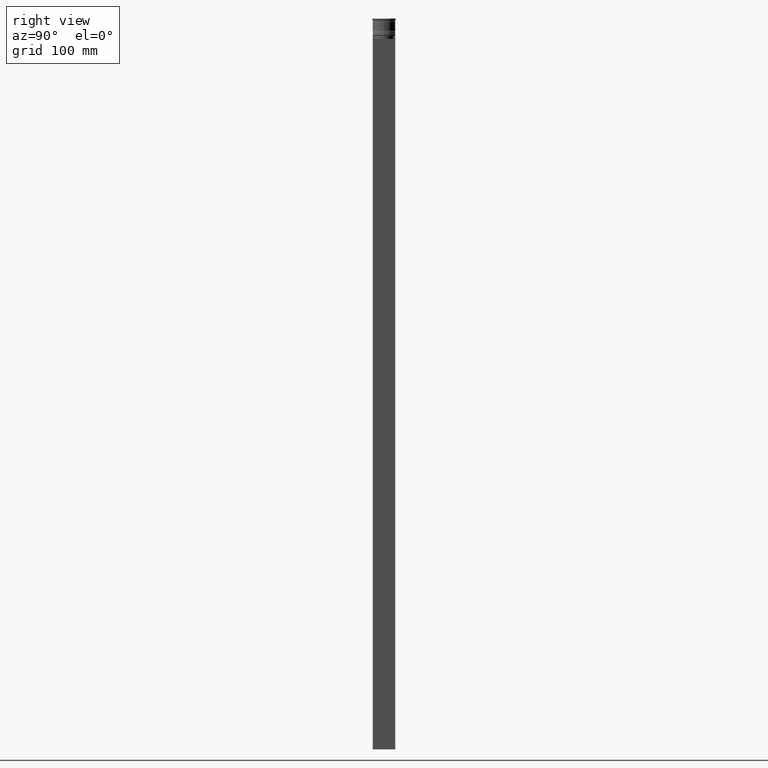
[diagram: clean part render]
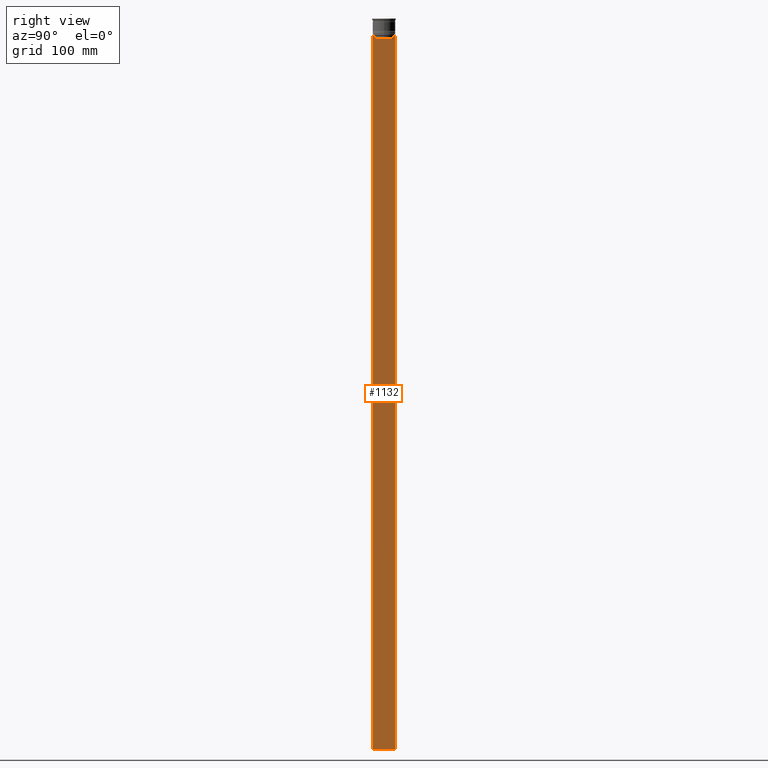
[diagram: same view with one face highlighted and labeled with its STEP entity id]
A machine part, right view. The second image highlights one B-rep face of the part: STEP entity #1132.
In plain terms, the highlighted planar face has unit normal (-1, 0, 0).
Its self-contained STEP definition (entity closure, byte-faithful):
#5 = CARTESIAN_POINT ( 'NONE',  ( 0.5000000000000000000, 8.051152811434374001, -14.33334332653219079 ) ) ;
#6 = EDGE_CURVE ( 'NONE', #1875, #645, #1777, .T. ) ;
#30 = DIRECTION ( 'NONE',  ( 0.000000000000000000, 0.000000000000000000, -1.000000000000000000 ) ) ;
#49 = EDGE_CURVE ( 'NONE', #1387, #509, #2404, .T. ) ;
#56 = CARTESIAN_POINT ( 'NONE',  ( 0.5000000000000000000, -8.385105843100605583, -14.00000000000000178 ) ) ;
#58 = ORIENTED_EDGE ( 'NONE', *, *, #1828, .T. ) ;
#59 = VERTEX_POINT ( 'NONE', #550 ) ;
#131 = LINE ( 'NONE', #888, #1768 ) ;
#135 = DIRECTION ( 'NONE',  ( 0.000000000000000000, -1.000000000000000000, 0.000000000000000000 ) ) ;
#171 = B_SPLINE_CURVE_WITH_KNOTS ( 'NONE', 3,
 ( #1670, #620, #5, #2521 ),
 .UNSPECIFIED., .F., .F.,
 ( 4, 4 ),
 ( 0.01426761478740281447, 0.01497538974438914448 ),
 .UNSPECIFIED. ) ;
#190 = DIRECTION ( 'NONE',  ( 0.000000000000000000, -1.000000000000000000, 0.000000000000000000 ) ) ;
#219 = CARTESIAN_POINT ( 'NONE',  ( 0.5000000000000000000, -9.500000000000001776, -614.0000000000000000 ) ) ;
#295 = VECTOR ( 'NONE', #30, 1000.000000000000000 ) ;
#305 = LINE ( 'NONE', #1884, #295 ) ;
#331 = CARTESIAN_POINT ( 'NONE',  ( 0.5000000000000000000, -9.386692708297204035, -14.00000000000000178 ) ) ;
#395 = CARTESIAN_POINT ( 'NONE',  ( 0.5000000000000000000, 7.884161337770803080, 0.000000000000000000 ) ) ;
#483 = CARTESIAN_POINT ( 'NONE',  ( 0.5000000000000000000, 9.386692708297204035, -14.00000000000000178 ) ) ;
#509 = VERTEX_POINT ( 'NONE', #813 ) ;
#531 = EDGE_CURVE ( 'NONE', #1382, #1957, #1470, .T. ) ;
#538 = ORIENTED_EDGE ( 'NONE', *, *, #1080, .T. ) ;
#550 = CARTESIAN_POINT ( 'NONE',  ( 0.5000000000000000000, 8.385105843100605583, -14.00000000000000178 ) ) ;
#620 = CARTESIAN_POINT ( 'NONE',  ( 0.5000000000000000000, 8.218133718559618828, -14.16667606394327983 ) ) ;
#621 = CARTESIAN_POINT ( 'NONE',  ( 0.5000000000000000000, -8.051152795888546265, -14.33334334204685057 ) ) ;
#636 = DIRECTION ( 'NONE',  ( 0.000000000000000000, -1.000000000000000000, 0.000000000000000000 ) ) ;
#641 = AXIS2_PLACEMENT_3D ( 'NONE', #1584, #1099, #2577 ) ;
#645 = VERTEX_POINT ( 'NONE', #2157 ) ;
#679 = EDGE_CURVE ( 'NONE', #2576, #1356, #305, .T. ) ;
#749 = ORIENTED_EDGE ( 'NONE', *, *, #1778, .T. ) ;
#767 = ORIENTED_EDGE ( 'NONE', *, *, #1805, .T. ) ;
#777 = VECTOR ( 'NONE', #636, 1000.000000000000000 ) ;
#791 = DIRECTION ( 'NONE',  ( 0.000000000000000000, -1.000000000000000000, 0.000000000000000000 ) ) ;
#813 = CARTESIAN_POINT ( 'NONE',  ( 0.5000000000000000000, -7.884161337770803080, -17.00000000000000000 ) ) ;
#826 = LINE ( 'NONE', #2098, #1562 ) ;
#850 = CARTESIAN_POINT ( 'NONE',  ( 0.5000000000000000000, -9.500000000000001776, -14.00000000000000178 ) ) ;
#857 = VECTOR ( 'NONE', #791, 1000.000000000000000 ) ;
#888 = CARTESIAN_POINT ( 'NONE',  ( 0.5000000000000000000, -9.500000000000001776, -14.00000000000000178 ) ) ;
#897 = EDGE_LOOP ( 'NONE', ( #538, #767, #1508, #1601, #1202, #1616, #1016, #749, #1981, #58, #957, #2487 ) ) ;
#938 = VECTOR ( 'NONE', #135, 1000.000000000000000 ) ;
#956 = DIRECTION ( 'NONE',  ( 0.000000000000000000, -1.000000000000000000, 0.000000000000000000 ) ) ;
#957 = ORIENTED_EDGE ( 'NONE', *, *, #6, .F. ) ;
#995 = VECTOR ( 'NONE', #1698, 1000.000000000000000 ) ;
#1016 = ORIENTED_EDGE ( 'NONE', *, *, #2266, .T. ) ;
#1065 = CARTESIAN_POINT ( 'NONE',  ( 0.5000000000000000000, -7.884161337770803080, -14.50000000000000000 ) ) ;
#1080 = EDGE_CURVE ( 'NONE', #1965, #59, #131, .T. ) ;
#1099 = DIRECTION ( 'NONE',  ( -1.000000000000000000, 0.000000000000000000, 0.000000000000000000 ) ) ;
#1132 = ADVANCED_FACE ( 'NONE', ( #1967 ), #1504, .F. ) ;
#1202 = ORIENTED_EDGE ( 'NONE', *, *, #1826, .T. ) ;
#1232 = EDGE_CURVE ( 'NONE', #1875, #1965, #2644, .T. ) ;
#1254 = LINE ( 'NONE', #219, #995 ) ;
#1269 = CARTESIAN_POINT ( 'NONE',  ( 0.5000000000000000000, 9.499999999999998224, -14.00000000000000178 ) ) ;
#1282 = DIRECTION ( 'NONE',  ( -0.000000000000000000, -0.000000000000000000, 1.000000000000000000 ) ) ;
#1329 = VECTOR ( 'NONE', #2038, 1000.000000000000000 ) ;
#1356 = VERTEX_POINT ( 'NONE', #2087 ) ;
#1382 = VERTEX_POINT ( 'NONE', #1065 ) ;
#1387 = VERTEX_POINT ( 'NONE', #2481 ) ;
#1470 = B_SPLINE_CURVE_WITH_KNOTS ( 'NONE', 3,
 ( #2230, #621, #1872, #2272 ),
 .UNSPECIFIED., .F., .F.,
 ( 4, 4 ),
 ( 0.03673372442973153046, 0.03744389749832059688 ),
 .UNSPECIFIED. ) ;
#1504 = PLANE ( 'NONE',  #641 ) ;
#1508 = ORIENTED_EDGE ( 'NONE', *, *, #2633, .T. ) ;
#1550 = CARTESIAN_POINT ( 'NONE',  ( 0.5000000000000000000, 7.899999999999994138, -17.00000000000000000 ) ) ;
#1562 = VECTOR ( 'NONE', #1282, 1000.000000000000000 ) ;
#1584 = CARTESIAN_POINT ( 'NONE',  ( 0.5000000000000000000, -9.500000000000001776, 5.026297590440445440 ) ) ;
#1594 = VECTOR ( 'NONE', #2381, 1000.000000000000000 ) ;
#1601 = ORIENTED_EDGE ( 'NONE', *, *, #49, .T. ) ;
#1616 = ORIENTED_EDGE ( 'NONE', *, *, #531, .T. ) ;
#1670 = CARTESIAN_POINT ( 'NONE',  ( 0.5000000000000000000, 8.385105843100605583, -14.00000000000000178 ) ) ;
#1698 = DIRECTION ( 'NONE',  ( 0.000000000000000000, 1.000000000000000000, 0.000000000000000000 ) ) ;
#1747 = CARTESIAN_POINT ( 'NONE',  ( 0.5000000000000000000, 9.499999999999998224, 5.026297590440445440 ) ) ;
#1768 = VECTOR ( 'NONE', #956, 1000.000000000000000 ) ;
#1777 = LINE ( 'NONE', #1747, #1594 ) ;
#1778 = EDGE_CURVE ( 'NONE', #2065, #2576, #1782, .T. ) ;
#1782 = LINE ( 'NONE', #2055, #777 ) ;
#1788 = CARTESIAN_POINT ( 'NONE',  ( 0.5000000000000000000, -9.500000000000001776, -14.00000000000000178 ) ) ;
#1800 = CARTESIAN_POINT ( 'NONE',  ( 0.5000000000000000000, 7.884161337770803080, -14.50000000000000000 ) ) ;
#1805 = EDGE_CURVE ( 'NONE', #59, #2537, #171, .T. ) ;
#1826 = EDGE_CURVE ( 'NONE', #509, #1382, #826, .T. ) ;
#1828 = EDGE_CURVE ( 'NONE', #1356, #645, #1254, .T. ) ;
#1872 = CARTESIAN_POINT ( 'NONE',  ( 0.5000000000000000000, -8.218133703942523738, -14.16667607853445787 ) ) ;
#1875 = VERTEX_POINT ( 'NONE', #1269 ) ;
#1884 = CARTESIAN_POINT ( 'NONE',  ( 0.5000000000000000000, -9.500000000000001776, 5.026297590440445440 ) ) ;
#1957 = VERTEX_POINT ( 'NONE', #56 ) ;
#1965 = VERTEX_POINT ( 'NONE', #483 ) ;
#1967 = FACE_OUTER_BOUND ( 'NONE', #897, .T. ) ;
#1981 = ORIENTED_EDGE ( 'NONE', *, *, #679, .T. ) ;
#2038 = DIRECTION ( 'NONE',  ( 0.000000000000000000, 0.000000000000000000, -1.000000000000000000 ) ) ;
#2041 = LINE ( 'NONE', #850, #2264 ) ;
#2055 = CARTESIAN_POINT ( 'NONE',  ( 0.5000000000000000000, -9.500000000000001776, -14.00000000000000178 ) ) ;
#2065 = VERTEX_POINT ( 'NONE', #331 ) ;
#2087 = CARTESIAN_POINT ( 'NONE',  ( 0.5000000000000000000, -9.500000000000001776, -614.0000000000000000 ) ) ;
#2098 = CARTESIAN_POINT ( 'NONE',  ( 0.5000000000000000000, -7.884161337770803080, 0.000000000000000000 ) ) ;
#2157 = CARTESIAN_POINT ( 'NONE',  ( 0.5000000000000000000, 9.499999999999998224, -614.0000000000000000 ) ) ;
#2230 = CARTESIAN_POINT ( 'NONE',  ( 0.5000000000000000000, -7.884161337770803080, -14.50000000000000000 ) ) ;
#2239 = LINE ( 'NONE', #395, #1329 ) ;
#2264 = VECTOR ( 'NONE', #190, 1000.000000000000000 ) ;
#2266 = EDGE_CURVE ( 'NONE', #1957, #2065, #2041, .T. ) ;
#2272 = CARTESIAN_POINT ( 'NONE',  ( 0.5000000000000000000, -8.385105843100605583, -14.00000000000000178 ) ) ;
#2381 = DIRECTION ( 'NONE',  ( 0.000000000000000000, 0.000000000000000000, -1.000000000000000000 ) ) ;
#2404 = LINE ( 'NONE', #1550, #938 ) ;
#2481 = CARTESIAN_POINT ( 'NONE',  ( 0.5000000000000000000, 7.884161337770803080, -17.00000000000000000 ) ) ;
#2487 = ORIENTED_EDGE ( 'NONE', *, *, #1232, .T. ) ;
#2521 = CARTESIAN_POINT ( 'NONE',  ( 0.5000000000000000000, 7.884161337770803080, -14.50000000000000000 ) ) ;
#2537 = VERTEX_POINT ( 'NONE', #1800 ) ;
#2576 = VERTEX_POINT ( 'NONE', #1788 ) ;
#2577 = DIRECTION ( 'NONE',  ( 0.000000000000000000, 0.000000000000000000, 1.000000000000000000 ) ) ;
#2618 = CARTESIAN_POINT ( 'NONE',  ( 0.5000000000000000000, -9.500000000000001776, -14.00000000000000178 ) ) ;
#2633 = EDGE_CURVE ( 'NONE', #2537, #1387, #2239, .T. ) ;
#2644 = LINE ( 'NONE', #2618, #857 ) ;